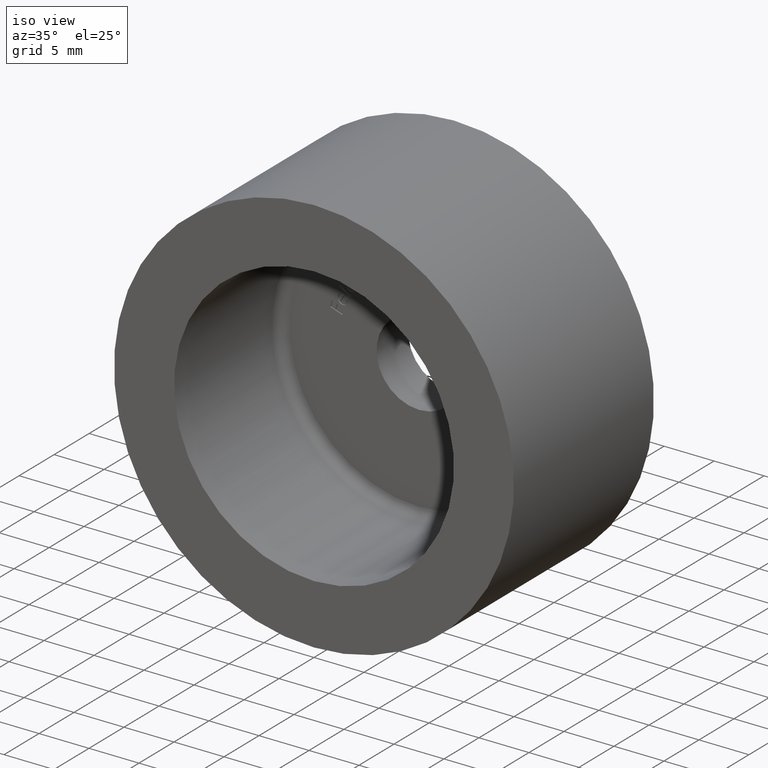
[diagram: clean part render]
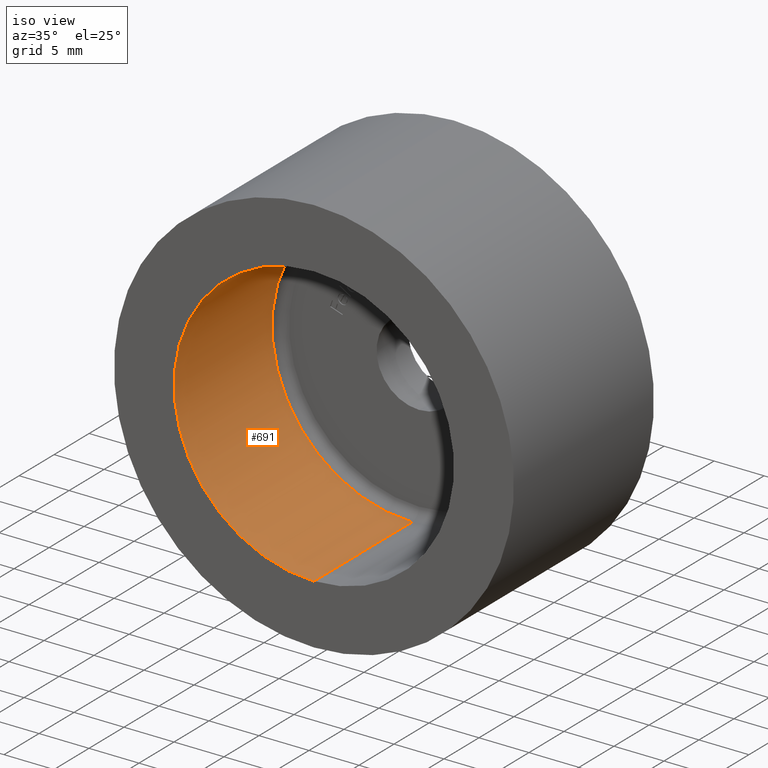
[diagram: same view with one face highlighted and labeled with its STEP entity id]
A machine part, iso view. The second image highlights one B-rep face of the part: STEP entity #691.
In plain terms, the highlighted cylindrical surface (partial cylindrical patch) has radius 14 mm, axis along (-0, -1, -0).
Its self-contained STEP definition (entity closure, byte-faithful):
#376 = AXIS2_PLACEMENT_3D ( 'NONE', #8402, #14586, #6039 ) ;
#429 = ORIENTED_EDGE ( 'NONE', *, *, #3015, .T. ) ;
#691 = ADVANCED_FACE ( 'NONE', ( #4810 ), #10337, .F. ) ;
#921 = DIRECTION ( 'NONE',  ( 0.000000000000000000, 0.000000000000000000, -1.000000000000000000 ) ) ;
#1025 = VERTEX_POINT ( 'NONE', #1897 ) ;
#1410 = EDGE_CURVE ( 'NONE', #3306, #9328, #2215, .T. ) ;
#1425 = VECTOR ( 'NONE', #15331, 1000.000000000000000 ) ;
#1897 = CARTESIAN_POINT ( 'NONE',  ( 1.714505518806294638E-15, 0.000000000000000000, 14.00000000000000000 ) ) ;
#2017 = VERTEX_POINT ( 'NONE', #10093 ) ;
#2150 = ORIENTED_EDGE ( 'NONE', *, *, #10859, .T. ) ;
#2215 = CIRCLE ( 'NONE', #376, 14.00000000000000000 ) ;
#3015 = EDGE_CURVE ( 'NONE', #1025, #2017, #5189, .T. ) ;
#3306 = VERTEX_POINT ( 'NONE', #11484 ) ;
#3322 = DIRECTION ( 'NONE',  ( -0.000000000000000000, -1.000000000000000000, -0.000000000000000000 ) ) ;
#3851 = CARTESIAN_POINT ( 'NONE',  ( 0.000000000000000000, 0.000000000000000000, 0.000000000000000000 ) ) ;
#4810 = FACE_OUTER_BOUND ( 'NONE', #10046, .T. ) ;
#5189 = CIRCLE ( 'NONE', #13981, 14.00000000000000000 ) ;
#6022 = ORIENTED_EDGE ( 'NONE', *, *, #1410, .T. ) ;
#6039 = DIRECTION ( 'NONE',  ( 0.000000000000000000, 0.000000000000000000, 1.000000000000000000 ) ) ;
#7610 = DIRECTION ( 'NONE',  ( 0.000000000000000000, 0.000000000000000000, -1.000000000000000000 ) ) ;
#8001 = AXIS2_PLACEMENT_3D ( 'NONE', #10624, #3322, #921 ) ;
#8324 = EDGE_CURVE ( 'NONE', #3306, #2017, #12085, .T. ) ;
#8402 = CARTESIAN_POINT ( 'NONE',  ( 0.000000000000000000, 13.99999999999999822, 0.000000000000000000 ) ) ;
#8731 = DIRECTION ( 'NONE',  ( 0.000000000000000000, -1.000000000000000000, 0.000000000000000000 ) ) ;
#8840 = VECTOR ( 'NONE', #13164, 1000.000000000000000 ) ;
#8887 = CARTESIAN_POINT ( 'NONE',  ( 1.714505518806294638E-15, 13.99999999999999822, 14.00000000000000000 ) ) ;
#9328 = VERTEX_POINT ( 'NONE', #8887 ) ;
#10046 = EDGE_LOOP ( 'NONE', ( #6022, #2150, #429, #14386 ) ) ;
#10093 = CARTESIAN_POINT ( 'NONE',  ( 0.000000000000000000, 0.000000000000000000, -14.00000000000000000 ) ) ;
#10337 = CYLINDRICAL_SURFACE ( 'NONE', #8001, 14.00000000000000000 ) ;
#10624 = CARTESIAN_POINT ( 'NONE',  ( 0.000000000000000000, 59.59797974644665430, 0.000000000000000000 ) ) ;
#10859 = EDGE_CURVE ( 'NONE', #9328, #1025, #12255, .T. ) ;
#11484 = CARTESIAN_POINT ( 'NONE',  ( 0.000000000000000000, 13.99999999999999822, -14.00000000000000000 ) ) ;
#12085 = LINE ( 'NONE', #12121, #8840 ) ;
#12121 = CARTESIAN_POINT ( 'NONE',  ( 0.000000000000000000, 59.59797974644665430, -14.00000000000000000 ) ) ;
#12255 = LINE ( 'NONE', #15528, #1425 ) ;
#13164 = DIRECTION ( 'NONE',  ( -0.000000000000000000, -1.000000000000000000, -0.000000000000000000 ) ) ;
#13981 = AXIS2_PLACEMENT_3D ( 'NONE', #3851, #8731, #7610 ) ;
#14386 = ORIENTED_EDGE ( 'NONE', *, *, #8324, .F. ) ;
#14586 = DIRECTION ( 'NONE',  ( -0.000000000000000000, 1.000000000000000000, -0.000000000000000000 ) ) ;
#15331 = DIRECTION ( 'NONE',  ( -0.000000000000000000, -1.000000000000000000, -0.000000000000000000 ) ) ;
#15528 = CARTESIAN_POINT ( 'NONE',  ( 1.714505518806294638E-15, 59.59797974644665430, 14.00000000000000000 ) ) ;